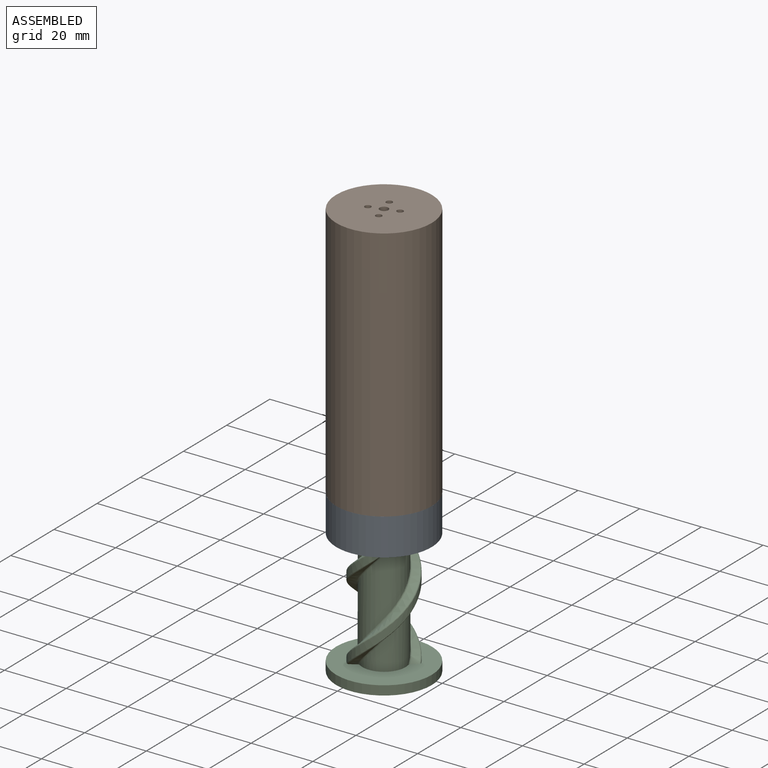
[diagram: assembled view]
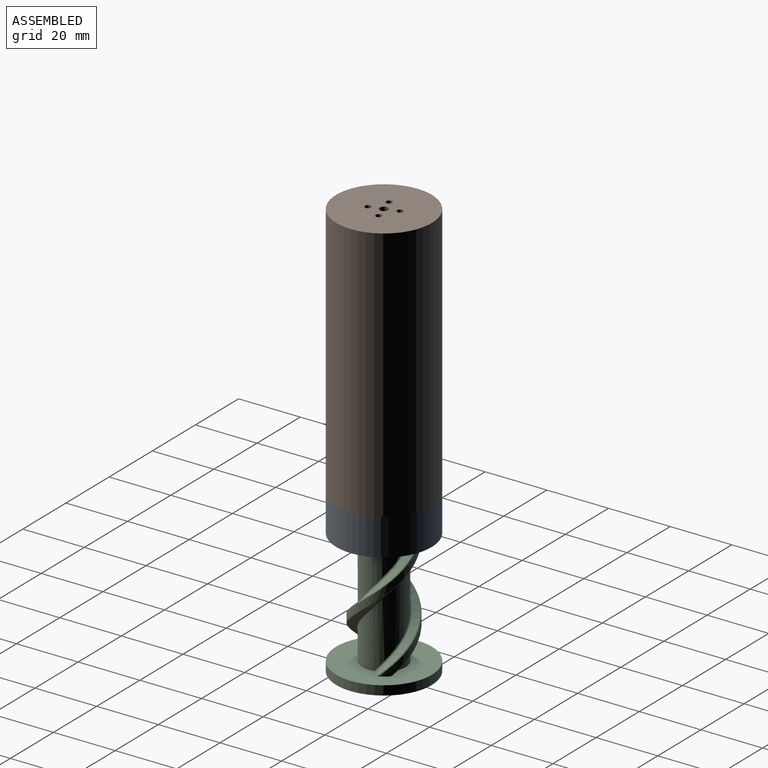
[diagram: assembled view, second angle]
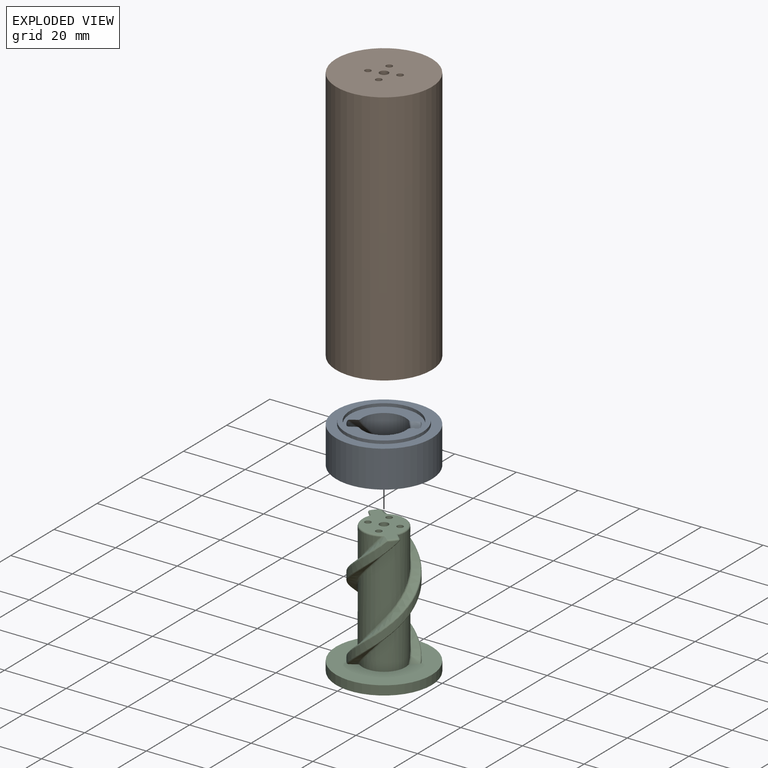
[diagram: exploded view]
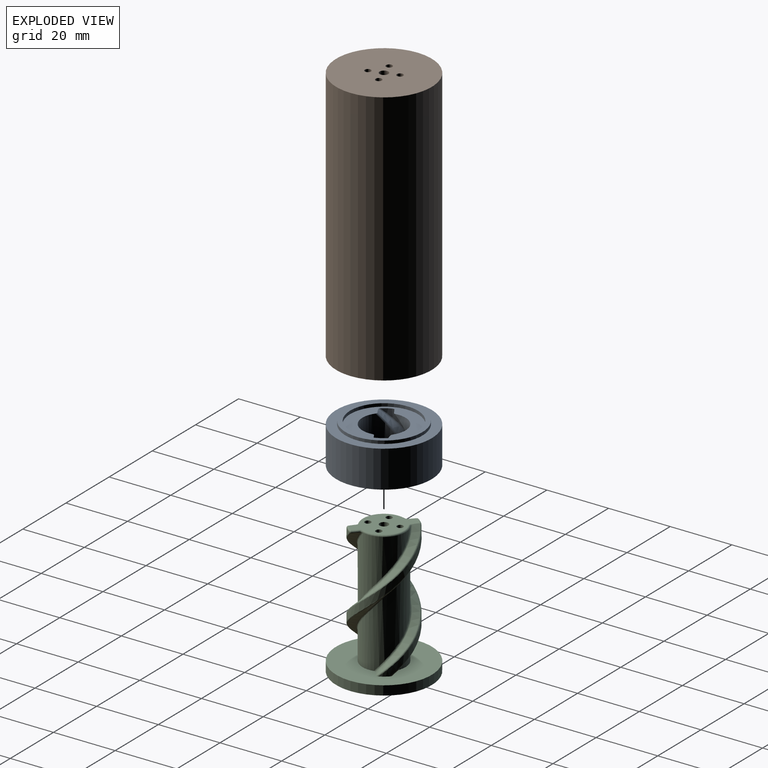
[diagram: exploded view, second angle]
ASSEMBLY  parts=3 mates=2
PART A: 23 faces, bbox 31.1x31.1x18 mm
  f0: plane 22.14x22.14mm, normal (0,0,1), area 199.6mm2, adj f4,f5,f6,f7,f8,f9,f10,f11
  f1: plane 31.14x31.14mm, normal (0,0,-1), area 574.3mm2, adj f2,f4,f5,f6,f7,f8,f9,f10
  f2: cylinder r=15.5mm len=31mm, axis (0,0,-1), area 1168.7mm2, adj f1,f3
  f3: plane 31x31mm, normal (0,0,1), area 263.9mm2, adj f2,f21
  f4: bspline ~17.47x17.32mm, area 39.3mm2, adj f0,f1,f13,f18
  f5: cylinder r=10mm len=13.72mm, axis (0,0,1), area 34.9mm2, adj f0,f1,f17,f18
  f6: bspline ~17.47x15mm, area 39.3mm2, adj f0,f1,f17,f19
  f7: bspline ~17.47x17.32mm, area 39.3mm2, adj f0,f1,f12,f15
  f8: cylinder r=10mm len=13.72mm, axis (0,0,1), area 34.9mm2, adj f0,f1,f14,f15
  f9: bspline ~17.47x15mm, area 39.3mm2, adj f0,f1,f14,f16
  f10: cylinder r=7mm len=13.93mm, axis (0,0,-1), area 198.1mm2, adj f0,f1,f12,f19
  f11: cylinder r=7mm len=13.93mm, axis (0,0,-1), area 198.1mm2, adj f0,f1,f13,f16
  f12: bspline ~13.33x10.63mm, area 10.9mm2, adj f0,f1,f7,f10
  f13: bspline ~13.33x10.63mm, area 10.9mm2, adj f0,f1,f4,f11
  f14: bspline ~14.04x11.95mm, area 13.3mm2, adj f0,f1,f8,f9
  f15: bspline ~13.93x13.33mm, area 13.3mm2, adj f0,f1,f7,f8
  f16: bspline ~13.98x8.73mm, area 10.9mm2, adj f0,f1,f9,f11
  f17: bspline ~14.04x11.95mm, area 13.3mm2, adj f0,f1,f5,f6
  f18: bspline ~13.93x13.33mm, area 13.3mm2, adj f0,f1,f4,f5
  f19: bspline ~13.98x8.73mm, area 10.9mm2, adj f0,f1,f6,f10
  f20: cylinder r=11mm len=22mm, axis (0,0,-1), area 69.1mm2, adj f0,f22
  f21: cylinder r=12.5mm len=25mm, axis (0,0,-1), area 78.5mm2, adj f3,f22
  f22: plane 25x25mm, normal (0,0,1), area 110.7mm2, adj f20,f21
PART B: 10 faces, bbox 31x31x83 mm
  f0: cylinder r=12.5mm len=80mm, axis (0,0,-1), area 6283.2mm2, adj f2,f3
  f1: cylinder r=15.5mm len=83mm, axis (0,0,-1), area 8083.3mm2, adj f2,f9
  f2: plane 31x31mm, normal (0,0,1), area 263.9mm2, adj f0,f1
  f3: plane 25x25mm, normal (0,0,1), area 472.1mm2, adj f0,f4,f5,f6,f7,f8
  f4: cylinder r=1mm len=3mm, axis (0,0,1), area 18.8mm2, adj f3,f9
  f5: cylinder r=1mm len=3mm, axis (0,0,1), area 18.8mm2, adj f3,f9
  f6: cylinder r=1mm len=3mm, axis (0,0,1), area 18.8mm2, adj f3,f9
  f7: cylinder r=1mm len=3mm, axis (0,0,1), area 18.8mm2, adj f3,f9
  f8: cylinder r=1.4mm len=3mm, axis (0,0,1), area 26.4mm2, adj f3,f9
  f9: plane 31x31mm, normal (0,0,-1), area 736mm2, adj f1,f4,f5,f6,f7,f8
PART C: 44 faces, bbox 31.1x31.1x44.8 mm
  f0: bspline ~42.47x20mm, area 128.1mm2, adj f11,f21,f27,f28
  f1: cylinder r=10mm len=39.5mm, axis (0,0,1), area 115.7mm2, adj f11,f16,f21,f22
  f2: bspline ~42.47x20mm, area 130.5mm2, adj f11,f16,f17,f18
  f3: bspline ~42.47x20mm, area 128.1mm2, adj f11,f24,f29,f30
  f4: cylinder r=10mm len=39.5mm, axis (0,0,1), area 115.7mm2, adj f11,f30,f35,f36
  f5: bspline ~42.47x20mm, area 130.5mm2, adj f11,f33,f36,f39
  f6: cylinder r=7mm len=39.5mm, axis (0,0,-1), area 652.5mm2, adj f11,f18,f23,f24
  f7: cylinder r=7mm len=39.5mm, axis (0,0,-1), area 652.5mm2, adj f11,f27,f33,f34
  f8: plane 17.37x13mm, normal (0,0,1), area 132.7mm2, adj f15,f17,f20,f22,f23,f26,f28,f29
  f9: plane 31x31mm, normal (0,0,-1), area 736mm2, adj f10,f13,f40,f41,f42,f43
  f10: cylinder r=15.5mm len=31mm, axis (0,0,1), area 292.2mm2, adj f9,f11
  f11: plane 31.14x31.14mm, normal (0,0,1), area 574.3mm2, adj f0,f1,f2,f3,f4,f5,f6,f7
  f12: cone r=0mm half-angle=59deg, axis (0,0,-1), area 7.2mm2, adj f13
  f13: cylinder r=1.4mm len=10mm, axis (0,0,-1), area 88mm2, adj f9,f12
  f14: cone r=0mm half-angle=59deg, axis (0,0,1), area 7.2mm2, adj f15
  f15: cylinder r=1.4mm len=10mm, axis (0,0,1), area 88mm2, adj f8,f14
  f16: bspline ~41.29x20.01mm, area 43.8mm2, adj f1,f2,f11,f19
  f17: bspline ~2.37x1.88mm, area 0.9mm2, adj f2,f8,f19,f20
  f18: bspline ~41.94x14.8mm, area 36.1mm2, adj f2,f6,f11,f20
  f19: sphere r=0.5mm, area 0.2mm2, adj f16,f17,f22
  f20: bspline ~1.56x0.74mm, area 0.8mm2, adj f8,f17,f18,f23
  f21: bspline ~41.27x20.01mm, area 43.4mm2, adj f0,f1,f11,f25
  f22: torus R=9.5mm, axis (0,0,1), area 2.3mm2, adj f1,f8,f19,f25
  f23: torus R=6.5mm, axis (0,0,1), area 12.6mm2, adj f6,f8,f20,f26
  f24: bspline ~40.82x14.8mm, area 35.8mm2, adj f3,f6,f11,f26
  f25: sphere r=0.5mm, area 0.5mm2, adj f21,f22,f28
  f26: bspline ~1.78x1.09mm, area 1.1mm2, adj f8,f23,f24,f29
  f27: bspline ~40.82x14.8mm, area 35.8mm2, adj f0,f7,f11,f31
  f28: bspline ~3.37x2.79mm, area 2.7mm2, adj f0,f8,f25,f31
  f29: bspline ~3.37x2.79mm, area 2.7mm2, adj f3,f8,f26,f32
  f30: bspline ~41.27x20.01mm, area 43.4mm2, adj f3,f4,f11,f32
  f31: bspline ~1.78x1.09mm, area 1.1mm2, adj f8,f27,f28,f34
  f32: sphere r=0.5mm, area 0.5mm2, adj f29,f30,f35
  f33: bspline ~41.94x14.8mm, area 36.1mm2, adj f5,f7,f11,f37
  f34: torus R=6.5mm, axis (0,0,1), area 12.6mm2, adj f7,f8,f31,f37
  f35: torus R=9.5mm, axis (0,0,1), area 2.3mm2, adj f4,f8,f32,f38
  f36: bspline ~41.29x20.01mm, area 43.8mm2, adj f4,f5,f11,f38
  f37: bspline ~1.56x0.74mm, area 0.8mm2, adj f8,f33,f34,f39
  f38: sphere r=0.5mm, area 0.2mm2, adj f35,f36,f39
  f39: bspline ~2.37x1.88mm, area 0.9mm2, adj f5,f8,f37,f38
  f40: cylinder r=1mm len=43mm, axis (0,0,-1), area 270.2mm2, adj f8,f9
  f41: cylinder r=1mm len=43mm, axis (0,0,-1), area 270.2mm2, adj f8,f9
  f42: cylinder r=1mm len=43mm, axis (0,0,-1), area 270.2mm2, adj f8,f9
  f43: cylinder r=1mm len=43mm, axis (0,0,-1), area 270.2mm2, adj f8,f9
PLACE A rot(axis=(0,0,-1),73deg) t=(14.26,1.19,-24.79)mm fixed
PLACE B rot(axis=(0.15,-0.99,0),180deg) t=(14.26,1.19,67.21)mm
PLACE C rot(axis=(0,0,-1),162.8deg) t=(14.26,1.19,-62.26)mm
MATE cylindrical A.f5 <-> C.f10  axis (0,0,-1) through (14.26,1.19,-24.79)mm
MATE fastened A.f2 <-> B.f1  axis (0,0,1) through (14.26,1.19,-12.79)mm
